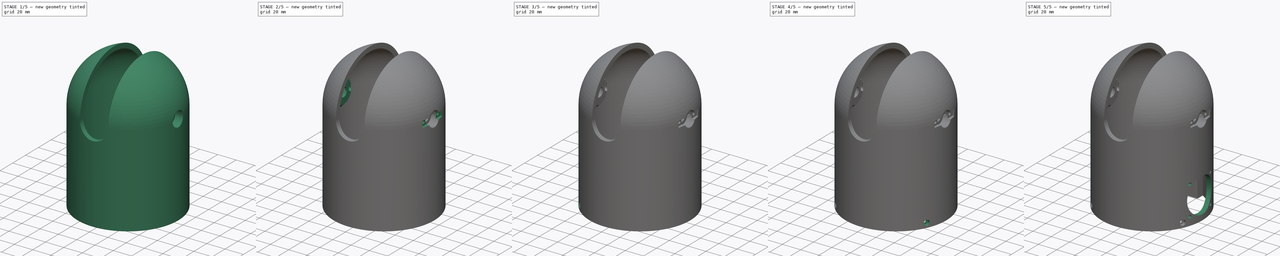
[diagram: build sequence overview — one tinted view per stage of 5, left to right]
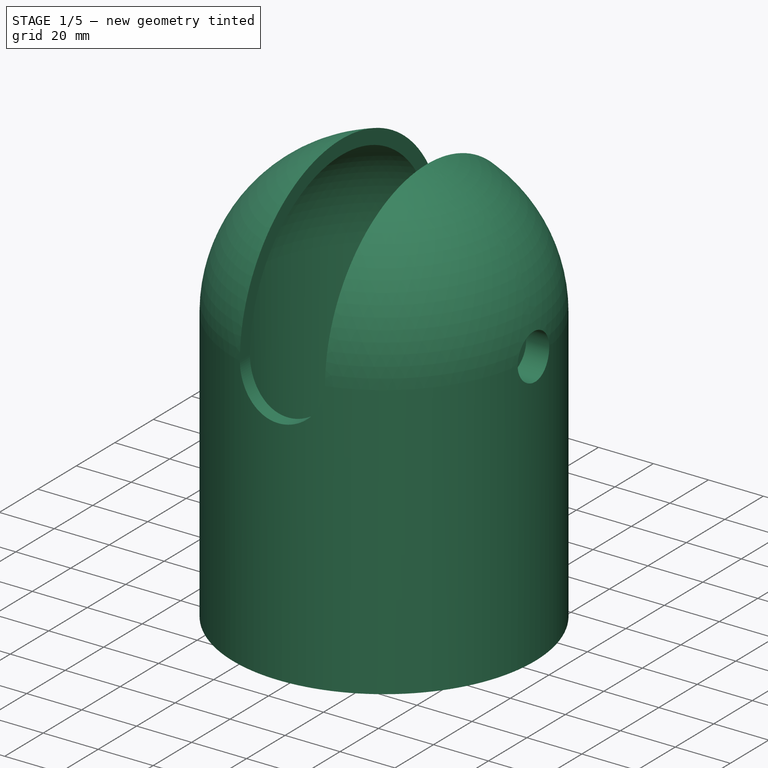
[diagram: stage 1 of 5 — iso view after this stage's code; geometry added in this stage tinted green]
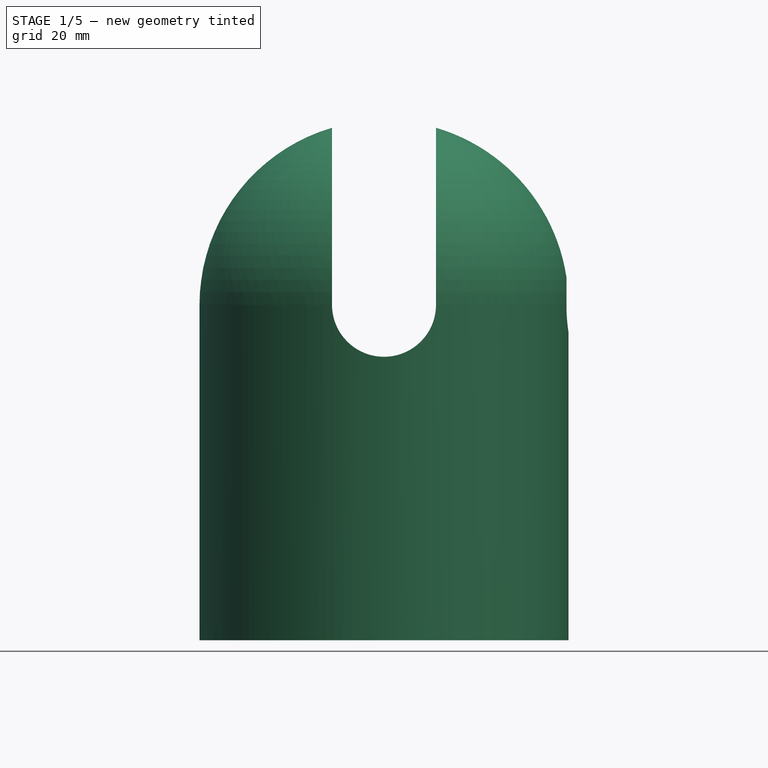
[diagram: stage 1 of 5 — front view after this stage's code; geometry added in this stage tinted green]
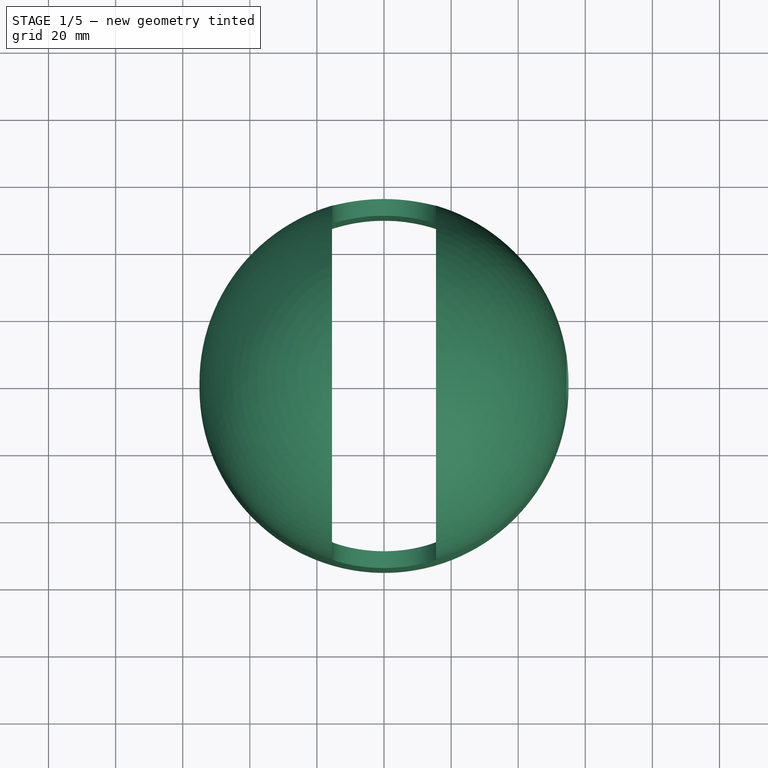
[diagram: stage 1 of 5 — top view after this stage's code; geometry added in this stage tinted green]
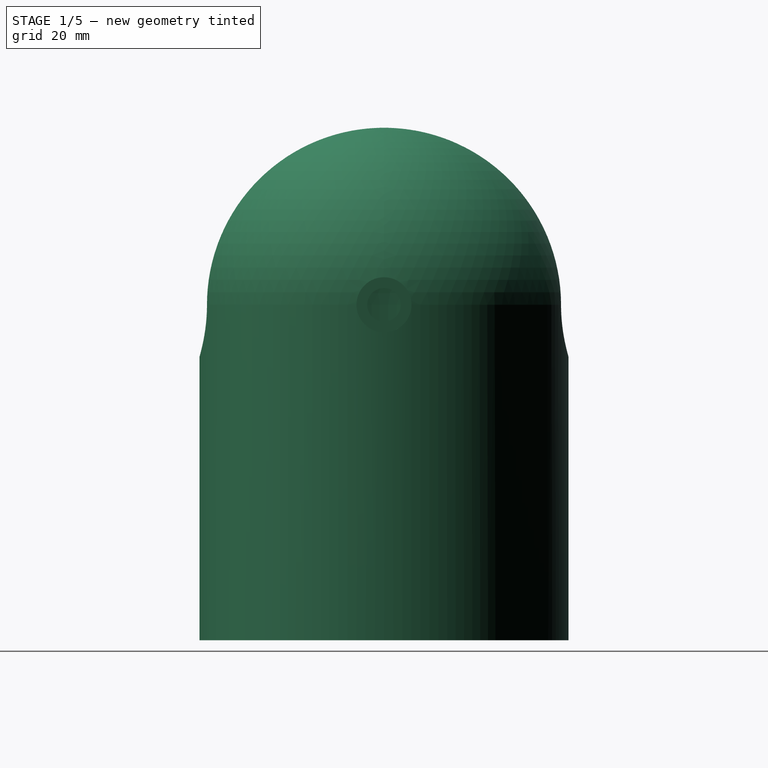
[diagram: stage 1 of 5 — right view after this stage's code; geometry added in this stage tinted green]
FCSTD DOCUMENT  (FreeCAD 0.19R24276 (Git))
Label: Art4Body
License: All rights reserved
LicenseURL: http://en.wikipedia.org/wiki/All_rights_reserved
objects: PartDesign::Line×21, Sketcher::SketchObject×20, PartDesign::Pocket×17, PartDesign::CoordinateSystem×9, PartDesign::Plane×4, PartDesign::PolarPattern×3, PartDesign::Revolution×2, PartDesign::Mirrored×2, Spreadsheet::Sheet×1, PartDesign::Pad×1, PartDesign::MultiTransform×1, PartDesign::Body×1
note: 101 computed .brp shape members not serialized (recipe doc carries the construction recipe); baked Part::Feature solids carry a one-line shape summary decoded from their .brp

FEATURE [Sketcher::SketchObject] Sketch
  FullyConstrained = true
  MapMode = 5
  Placement = pos=(0,0,0) rot=(1,0,0;1.5708rad)
  Support = -> [XZ_Plane]
  sketch-geometry (6):
    g0: ArcOfCircle CenterX=0 CenterY=100 CenterZ=0 NormalX=0 NormalY=0 NormalZ=1 AngleXU=0 Radius=50 StartAngle=0 EndAngle=1.5708
    g1: ArcOfCircle CenterX=0 CenterY=100 CenterZ=0 NormalX=0 NormalY=0 NormalZ=1 AngleXU=0 Radius=55 StartAngle=0 EndAngle=1.5708
    g2: LineSegment StartX=50 StartY=100 StartZ=0 EndX=50 EndY=0 EndZ=0
    g3: LineSegment StartX=50 StartY=0 StartZ=0 EndX=55 EndY=0 EndZ=0
    g4: LineSegment StartX=55 StartY=100 StartZ=0 EndX=55 EndY=0 EndZ=0
    g5: LineSegment StartX=0 StartY=155 StartZ=0 EndX=0 EndY=150 EndZ=0
  constraints (18):
    c: PointOnObject(g0,g-2)
    c: Coincident(g1,g0)
    c: Coincident(g2,g0)
    c: Vertical(g2)
    c: Coincident(g3,g2)
    c: PointOnObject(g3,g-1)
    c: Horizontal(g3)
    c: Coincident(g4,g3)
    c: Vertical(g4)
    c: Equal(g4,g2)
    c: DistanceY(g4,g4) = 100
    c: Tangent(g4,g1) = 1.5708
    c: DistanceX(g3,g3) = 5
    c: Radius(g1) = 55
    c: Coincident(g5,g1)
    c: Coincident(g5,g0)
    c: Vertical(g5)
    c: PointOnObject(g0,g-2)
FEATURE [PartDesign::Revolution] Revolution
  Angle = 360
  Axis = (0,2e-16,1)
  Base = (0,0,0)
  Placement = pos=(0,0,0) rot=(1,0,0;1.5708rad)
  Profile = -> Sketch
  ReferenceAxis = -> Sketch [V_Axis]
  Refine = true
  Reversed = true
FEATURE [Sketcher::SketchObject] Sketch001
  FullyConstrained = true
  MapMode = 5
  Placement = pos=(0,0,0) rot=(1,0,0;1.5708rad)
  Support = -> [XZ_Plane]
  sketch-geometry (4):
    g0: LineSegment StartX=-15.5 StartY=160 StartZ=0 EndX=15.5 EndY=160 EndZ=0
    g1: LineSegment StartX=15.5 StartY=160 StartZ=0 EndX=15.5 EndY=100 EndZ=0
    g2: LineSegment StartX=-15.5 StartY=160 StartZ=0 EndX=-15.5 EndY=100 EndZ=0
    g3: ArcOfCircle CenterX=0 CenterY=100 CenterZ=0 NormalX=0 NormalY=0 NormalZ=1 AngleXU=0 Radius=15.5 StartAngle=3.14159 EndAngle=6.28319
  constraints (11):
    c: Horizontal(g0)
    c: Coincident(g0,g1)
    c: Vertical(g1)
    c: Coincident(g0,g2)
    c: Vertical(g2)
    c: PointOnObject(g3,g-2)
    c: Tangent(g3,g1) = 1.5708
    c: Tangent(g3,g2) = -1.5708
    c: DistanceY(g1,g1) = 60
    c: Radius(g3) = 15.5
    c: DistanceY(g-1,g3) = 100
FEATURE [PartDesign::Pocket] Pocket
  BaseFeature = -> Revolution
  Length = 5
  Length2 = 100
  Midplane = true
  Placement = pos=(0,0,0) rot=(1,0,0;1.5708rad)
  Profile = -> Sketch001
  Refine = true
  Type = 1
FEATURE [Sketcher::SketchObject] Sketch002
  FullyConstrained = true
  MapMode = 5
  Placement = pos=(0,0,0) rot=(1,0,0;1.5708rad)
  Support = -> [XZ_Plane]
  sketch-geometry (4):
    g0: LineSegment StartX=50 StartY=100 StartZ=0 EndX=44 EndY=100 EndZ=0
    g1: LineSegment StartX=44 StartY=100 StartZ=0 EndX=44 EndY=112 EndZ=0
    g2: LineSegment StartX=44 StartY=112 StartZ=0 EndX=50 EndY=118 EndZ=0
    g3: LineSegment StartX=50 StartY=118 StartZ=0 EndX=50 EndY=100 EndZ=0
  constraints (12):
    c: Horizontal(g0)
    c: Coincident(g0,g1)
    c: Vertical(g1)
    c: Coincident(g1,g2)
    c: Coincident(g2,g3)
    c: Coincident(g3,g0)
    c: Vertical(g3)
    c: DistanceX(g0,g0) = 6
    c: DistanceY(g3,g3) = 18
    c: DistanceY(g1,g1) = 12
    c: DistanceX(g-1,g0) = 50
    c: DistanceY(g-1,g0) = 100
FEATURE [PartDesign::Line] DatumLine
  AttacherType = Attacher::AttachEngineLine
  AttachmentOffset = pos=(0,100,0) rot=(0,0,1;0rad)
  Length = 20
  MapMode = 29
  Placement = pos=(0,0,100) rot=(0.57735,0.57735,0.57735;2.0944rad)
  ResizeMode = 0
  Support = -> [X_Axis]
FEATURE [PartDesign::Revolution] Revolution001
  Angle = 360
  Axis = (1,0,0)
  Base = (0,0,100)
  BaseFeature = -> Pocket
  Placement = pos=(0,0,0) rot=(1,0,0;1.5708rad)
  Profile = -> Sketch002
  ReferenceAxis = -> DatumLine
  Refine = true
  Reversed = true
FEATURE [Sketcher::SketchObject] Sketch003
  ExternalGeometry = -> [Revolution001]
  FullyConstrained = true
  MapMode = 5
  Placement = pos=(-15.5,0,0) rot=(0.707107,0,0.707107;3.14159rad)
  Support = -> [Revolution001]
  sketch-geometry (1):
    g0: Circle CenterX=100 CenterY=-2.22e-14 CenterZ=0 NormalX=0 NormalY=0 NormalZ=1 AngleXU=0 Radius=5
  constraints (2):
    c: Radius(g0) = 5
    c: Coincident(g-3,g0)
FEATURE [PartDesign::Pocket] Pocket001
  BaseFeature = -> Revolution001
  Length = 5
  Length2 = 100
  Placement = pos=(0,0,0) rot=(1,0,0;1.5708rad)
  Profile = -> Sketch003
  Refine = true
  Reversed = true
  Type = 1
FEATURE [PartDesign::Plane] DatumPlane
  AttachmentOffset = pos=(0,0,-11) rot=(0,0,1;0rad)
  Length = 205.737
  MapMode = 5
  Placement = pos=(55,0,2.4e-15) rot=(0.707107,0,-0.707107;3.14159rad)
  ResizeMode = 0
  Support = -> [Pocket001]
  Width = 137.953
FEATURE [Sketcher::SketchObject] Sketch004
  ExternalGeometry = -> [Pocket001]
  FullyConstrained = true
  MapMode = 5
  Placement = pos=(55,0,2.4e-15) rot=(0.707107,0,-0.707107;3.14159rad)
  Support = -> [DatumPlane]
  expr: Constraints[1] = Spreadsheet.Bearing655ZZBodyRadius
  sketch-geometry (1):
    g0: Circle CenterX=-100 CenterY=-8.88e-14 CenterZ=0 NormalX=0 NormalY=0 NormalZ=1 AngleXU=0 Radius=8.2
  constraints (2):
    c: Coincident(g0,g-3)
    c: Radius(g0) = 8.2
FEATURE [Spreadsheet::Sheet] Spreadsheet
  cells = A2=M3BoltBodyRadius; B2(M3BoltBodyRadius)=1.7; A3=M3BoltHeadRadius; B3(M3BoltHeadRadius)=2.95; A4=M3NutCircumradius; B4(M3NutCircumradius)=3.35; A5=M3NutThickness; B5(M3NutThickness)=3; A6=Bearing655ZZBodyRadius; B6(Bearing655ZZBodyRadius)=8.199999999999999; A7=MagnetRadius; B7(MagnetRadius)=4.2; A8=MagnetThickness; B8(MagnetThickness)=1.1; A9=M2BoltBodyRadius; B9(M2BoltBodyRadius)=1.2; A10=M2BoltHeadRadius; B10(M2BoltHeadRadius)=2.1
FEATURE [PartDesign::Pocket] Pocket002
  BaseFeature = -> Pocket001
  Length = 9
  Length2 = 100
  Placement = pos=(0,0,0) rot=(1,0,0;1.5708rad)
  Profile = -> Sketch004
  Refine = true
  Reversed = true
  Type = 0
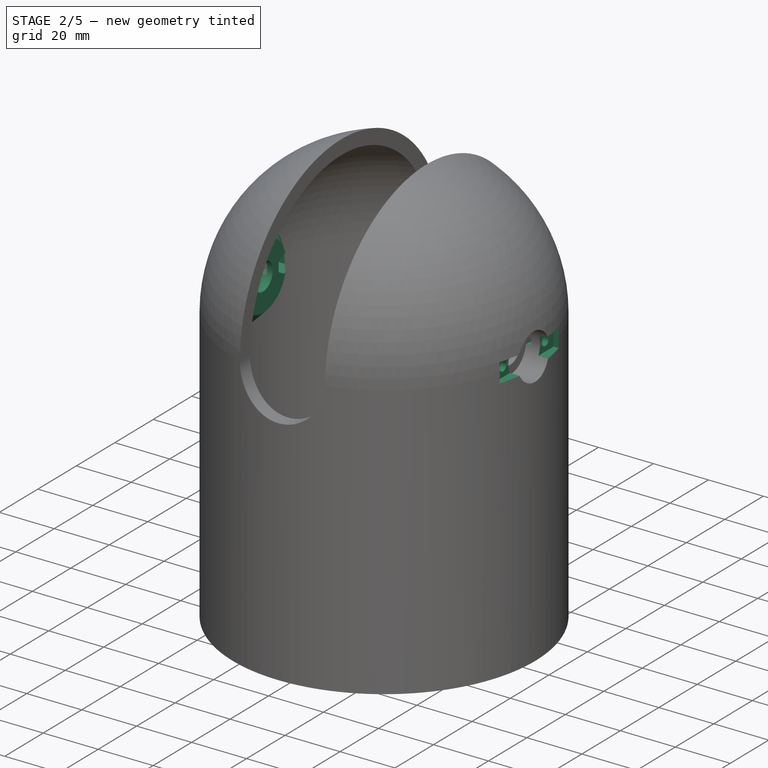
[diagram: stage 2 of 5 — iso view after this stage's code; geometry added in this stage tinted green]
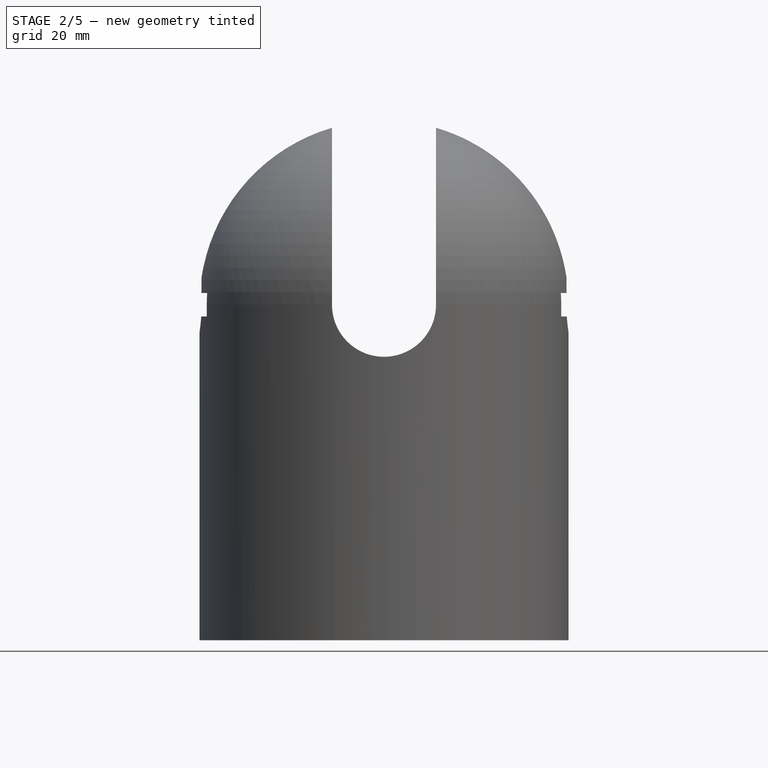
[diagram: stage 2 of 5 — front view after this stage's code; geometry added in this stage tinted green]
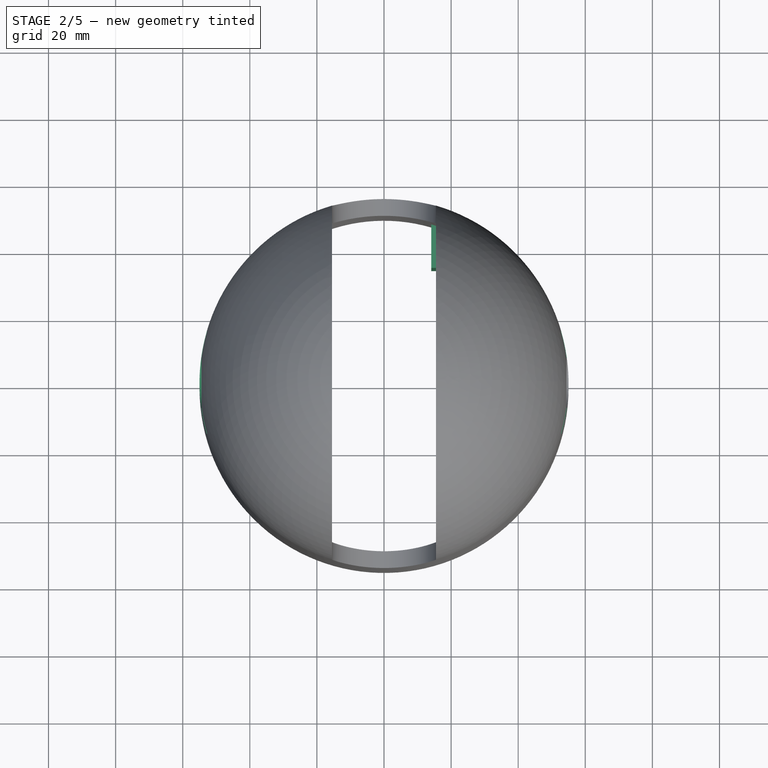
[diagram: stage 2 of 5 — top view after this stage's code; geometry added in this stage tinted green]
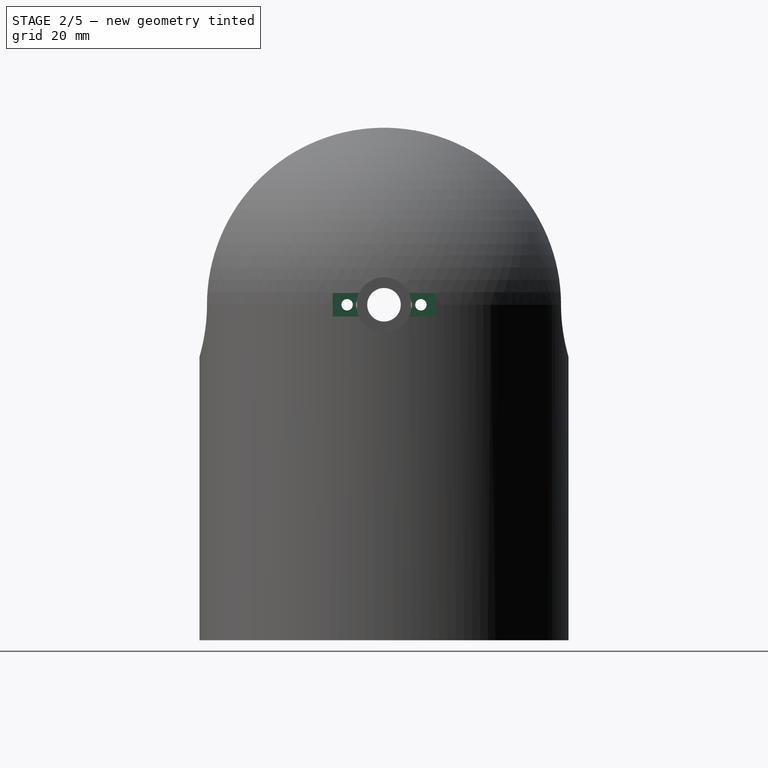
[diagram: stage 2 of 5 — right view after this stage's code; geometry added in this stage tinted green]
FEATURE [Sketcher::SketchObject] Sketch005
  ExternalGeometry = -> [Pocket002]
  FullyConstrained = false
  MapMode = 5
  Placement = pos=(55,0,2.4e-15) rot=(0.707107,0,-0.707107;3.14159rad)
  Support = -> [DatumPlane]
  sketch-geometry (6):
    g0: LineSegment StartX=-103.5 StartY=15.3 StartZ=0 EndX=-96.5 EndY=15.3 EndZ=0
    g1: LineSegment StartX=-96.5 StartY=15.3 StartZ=0 EndX=-96.5 EndY=-15.3 EndZ=0
    g2: LineSegment StartX=-96.5 StartY=-15.3 StartZ=0 EndX=-103.5 EndY=-15.3 EndZ=0
    g3: LineSegment StartX=-103.5 StartY=-15.3 StartZ=0 EndX=-103.5 EndY=15.3 EndZ=0
    g4: LineSegment StartX=-100 StartY=-1.332e-13 StartZ=0 EndX=-103.5 EndY=-1.332e-13 EndZ=0
    g5: LineSegment StartX=-100 StartY=-1.332e-13 StartZ=0 EndX=-96.5 EndY=-1.332e-13 EndZ=0
  constraints (16):
    c: Coincident(g0,g1)
    c: Coincident(g1,g2)
    c: Coincident(g2,g3)
    c: Coincident(g3,g0)
    c: Horizontal(g0)
    c: Horizontal(g2)
    c: Vertical(g3)
    c: Symmetric(g0,g1,g-1)
    c: DistanceX(g2,g2) = 7
    c: DistanceY(g1,g1) = 30.6
    c: PointOnObject(g4,g3)
    c: Coincident(g5,g4)
    c: PointOnObject(g5,g1)
    c: Equal(g5,g4)
    c: Horizontal(g4)
    c: Horizontal(g5)
FEATURE [PartDesign::Pocket] Pocket003
  BaseFeature = -> Pocket002
  Length = 4
  Length2 = 100
  Placement = pos=(0,0,0) rot=(1,0,0;1.5708rad)
  Profile = -> Sketch005
  Refine = true
  Reversed = true
  Type = 0
FEATURE [Sketcher::SketchObject] Sketch006
  ExternalGeometry = -> [Pocket003]
  FullyConstrained = true
  MapMode = 5
  Placement = pos=(51,0,0) rot=(0.707107,0,0.707107;3.14159rad)
  Support = -> [Pocket003]
  expr: Constraints[4] = Spreadsheet.M3BoltBodyRadius
  sketch-geometry (3):
    g0: Circle CenterX=100 CenterY=11 CenterZ=0 NormalX=0 NormalY=0 NormalZ=1 AngleXU=0 Radius=1.7
    g1: Circle CenterX=100 CenterY=-11 CenterZ=0 NormalX=0 NormalY=0 NormalZ=1 AngleXU=0 Radius=1.7
    g2: LineSegment StartX=100 StartY=11 StartZ=0 EndX=100 EndY=-11 EndZ=0
  constraints (7):
    c: Coincident(g2,g0)
    c: Coincident(g2,g1)
    c: PointOnObject(g-3,g2)
    c: Symmetric(g0,g1,g-1)
    c: Radius(g1) = 1.7
    c: DistanceY(g2,g2) = 22
    c: Equal(g0,g1)
FEATURE [PartDesign::Pocket] Pocket004
  BaseFeature = -> Pocket003
  Length = 10
  Length2 = 100
  Placement = pos=(0,0,0) rot=(1,0,0;1.5708rad)
  Profile = -> Sketch006
  Refine = true
  Type = 0
FEATURE [Sketcher::SketchObject] Sketch007
  ExternalGeometry = -> [Pocket004]
  FullyConstrained = true
  MapMode = 5
  Placement = pos=(44,0,0) rot=(0.707107,0,-0.707107;3.14159rad)
  Support = -> [Pocket004]
  expr: Constraints[36] = Spreadsheet.M3NutCircumradius
  sketch-geometry (14):
    g0: LineSegment StartX=-103.35 StartY=-11 StartZ=0 EndX=-101.675 EndY=-13.9012 EndZ=0
    g1: LineSegment StartX=-101.675 StartY=-13.9012 StartZ=0 EndX=-98.325 EndY=-13.9012 EndZ=0
    g2: LineSegment StartX=-98.325 StartY=-13.9012 StartZ=0 EndX=-96.65 EndY=-11 EndZ=0
    g3: LineSegment StartX=-96.65 StartY=-11 StartZ=0 EndX=-98.325 EndY=-8.09881 EndZ=0
    g4: LineSegment StartX=-98.325 StartY=-8.09881 StartZ=0 EndX=-101.675 EndY=-8.09881 EndZ=0
    g5: LineSegment StartX=-101.675 StartY=-8.09881 StartZ=0 EndX=-103.35 EndY=-11 EndZ=0
    g6: Circle CenterX=-100 CenterY=-11 CenterZ=0 NormalX=0 NormalY=0 NormalZ=1 AngleXU=0 Radius=3.35
    g7: LineSegment StartX=-101.675 StartY=8.09881 StartZ=0 EndX=-98.325 EndY=8.09881 EndZ=0
    g8: LineSegment StartX=-98.325 StartY=8.09881 StartZ=0 EndX=-96.65 EndY=11 EndZ=0
    g9: LineSegment StartX=-96.65 StartY=11 StartZ=0 EndX=-98.325 EndY=13.9012 EndZ=0
    g10: LineSegment StartX=-98.325 StartY=13.9012 StartZ=0 EndX=-101.675 EndY=13.9012 EndZ=0
    g11: LineSegment StartX=-101.675 StartY=13.9012 StartZ=0 EndX=-103.35 EndY=11 EndZ=0
    g12: LineSegment StartX=-103.35 StartY=11 StartZ=0 EndX=-101.675 EndY=8.09881 EndZ=0
    g13: Circle CenterX=-100 CenterY=11 CenterZ=0 NormalX=0 NormalY=0 NormalZ=1 AngleXU=0 Radius=3.35
  constraints (32):
    c: Coincident(g0,g1)
    c: Coincident(g1,g2)
    c: Coincident(g2,g3)
    c: Coincident(g3,g4)
    c: Coincident(g4,g5)
    c: Coincident(g5,g0)
    c: Equal(g0, g1-g5) x5
    c: PointOnObject(g0,g6)
    c: PointOnObject(g1,g6)
    c: PointOnObject(g2,g6)
    c: PointOnObject(g3,g6)
    c: PointOnObject(g4,g6)
    c: PointOnObject(g5,g6)
    c: Coincident(g7,g8)
    c: Coincident(g8,g9)
    c: Coincident(g9,g10)
    c: Coincident(g10,g11)
    c: Coincident(g11,g12)
    c: Coincident(g12,g7)
    c: Equal(g7, g8-g12) x5
    c: PointOnObject(g7,g13)
    c: PointOnObject(g8,g13)
    c: PointOnObject(g9,g13)
    c: PointOnObject(g10,g13)
    c: PointOnObject(g11,g13)
    c: PointOnObject(g12,g13)
    c: Equal(g13,g6)
    c: Horizontal(g4)
    c: Radius(g13) = 3.35
    c: Horizontal(g7)
    c: Coincident(g6,g-4)
    c: Coincident(g13,g-3)
FEATURE [PartDesign::Pocket] Pocket005
  BaseFeature = -> Pocket004
  Length = 4
  Length2 = 100
  Placement = pos=(0,0,0) rot=(1,0,0;1.5708rad)
  Profile = -> Sketch007
  Refine = true
  Type = 0
FEATURE [PartDesign::Mirrored] Mirrored
  BaseFeature = -> Pocket005
  MirrorPlane = -> Sketch002 [V_Axis]
  Originals = -> [Revolution001,Pocket001,Pocket002,Pocket003,Pocket004,Pocket005]
  Placement = pos=(0,0,0) rot=(1,0,0;1.5708rad)
  Refine = true
FEATURE [Sketcher::SketchObject] Sketch008
  ExternalGeometry = -> [Mirrored]
  FullyConstrained = true
  MapMode = 5
  Placement = pos=(0,0,0) rot=(1,0,0;3.14159rad)
  Support = -> [Mirrored]
  sketch-geometry (8):
    g0: ArcOfCircle CenterX=0 CenterY=0 CenterZ=0 NormalX=0 NormalY=0 NormalZ=1 AngleXU=0 Radius=50 StartAngle=3.82091 EndAngle=4.12042
    g1: ArcOfCircle CenterX=0 CenterY=0 CenterZ=0 NormalX=0 NormalY=0 NormalZ=1 AngleXU=0 Radius=50 StartAngle=4.99827 EndAngle=5.2383
    g2: LineSegment StartX=-38.9 StartY=-31.4132 StartZ=0 EndX=-38.9 EndY=-27 EndZ=0
    g3: LineSegment StartX=-38.9 StartY=-27 StartZ=0 EndX=-27.9 EndY=-27 EndZ=0
    g4: LineSegment StartX=-27.9 StartY=-27 StartZ=0 EndX=-27.9 EndY=-41.492 EndZ=0
    g5: LineSegment StartX=14.1 StartY=-47.9707 StartZ=0 EndX=14.1 EndY=-35 EndZ=0
    g6: LineSegment StartX=14.1 StartY=-35 StartZ=0 EndX=25.1 EndY=-35 EndZ=0
    g7: LineSegment StartX=25.1 StartY=-35 StartZ=0 EndX=25.1 EndY=-43.2434 EndZ=0
  constraints (24):
    c: Coincident(g0,g-1)
    c: Coincident(g1,g0)
    c: Vertical(g2)
    c: Coincident(g2,g3)
    c: Horizontal(g3)
    c: Coincident(g3,g4)
    c: Coincident(g4,g0)
    c: Vertical(g5)
    c: Coincident(g5,g6)
    c: Horizontal(g6)
    c: Coincident(g6,g7)
    c: Coincident(g7,g1)
    c: Vertical(g7)
    c: Coincident(g5,g1)
    c: Coincident(g2,g0)
    c: Vertical(g4)
    c: DistanceY(g3,g0) = 27
    c: DistanceX(g3,g0) = 27.9
    c: DistanceX(g3,g3) = 11
    c: DistanceX(g6,g6) = 11
    c: DistanceY(g5,g0) = 35
    c: DistanceX(g0,g5) = 14.1
    c: Equal(g0,g-3)
    c: Equal(g1,g-3)
FEATURE [PartDesign::Pad] Pad
  BaseFeature = -> Mirrored
  Direction = (1,1,1)
  Length = 55
  Length2 = 100
  Placement = pos=(0,0,0) rot=(1,0,0;1.5708rad)
  Profile = -> Sketch008
  Refine = true
  Reversed = true
  Type = 0
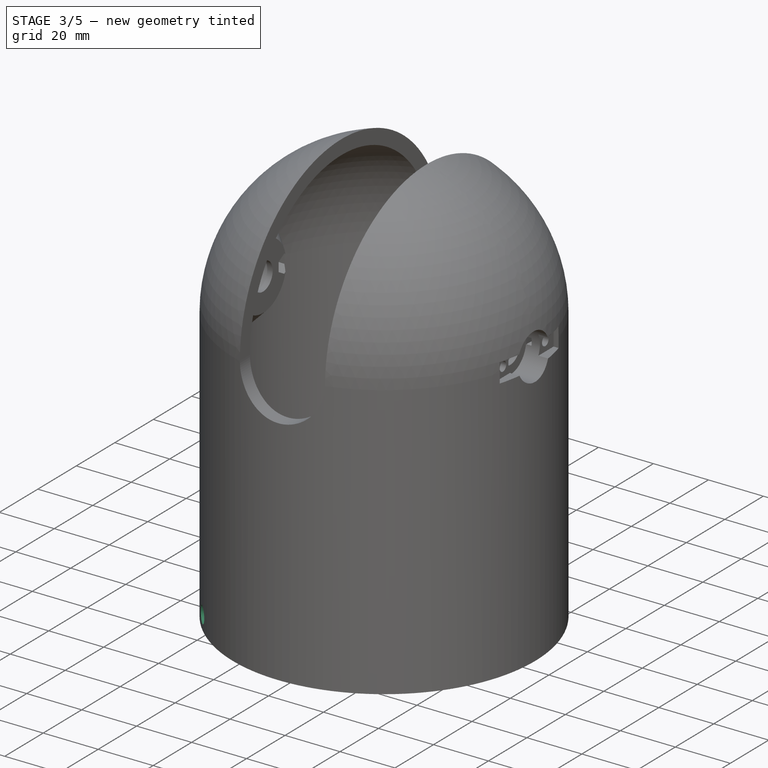
[diagram: stage 3 of 5 — iso view after this stage's code; geometry added in this stage tinted green]
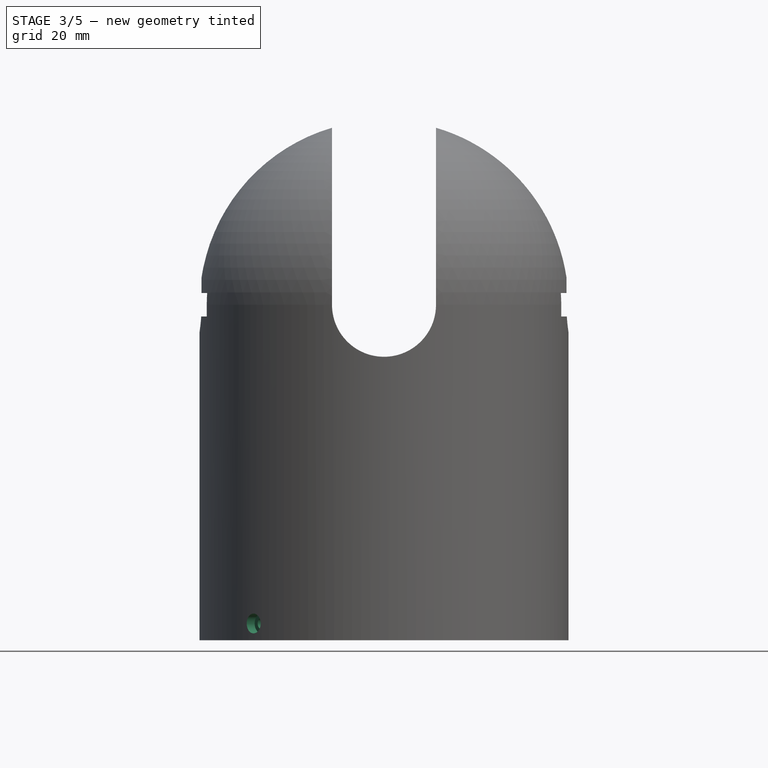
[diagram: stage 3 of 5 — front view after this stage's code; geometry added in this stage tinted green]
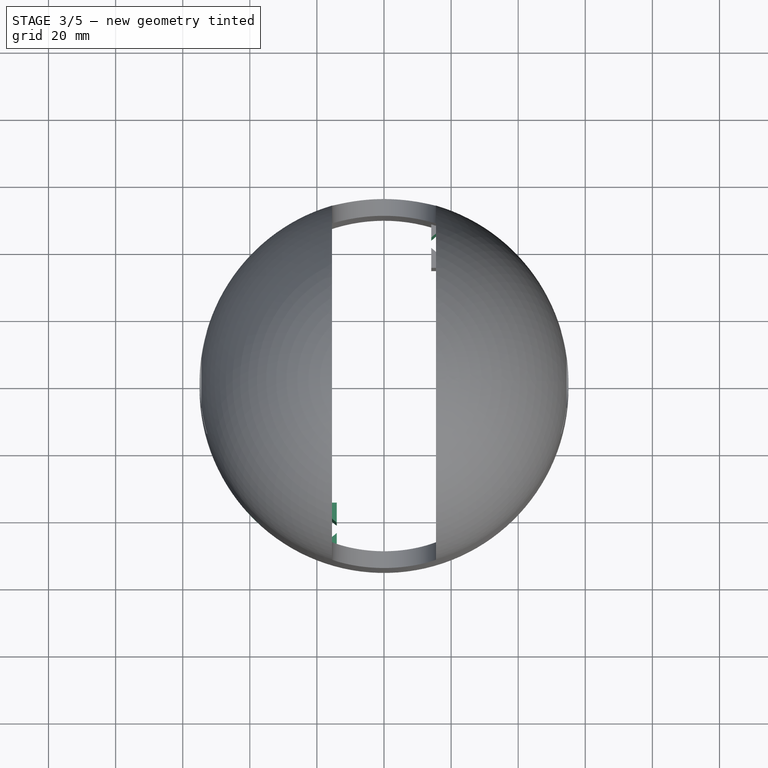
[diagram: stage 3 of 5 — top view after this stage's code; geometry added in this stage tinted green]
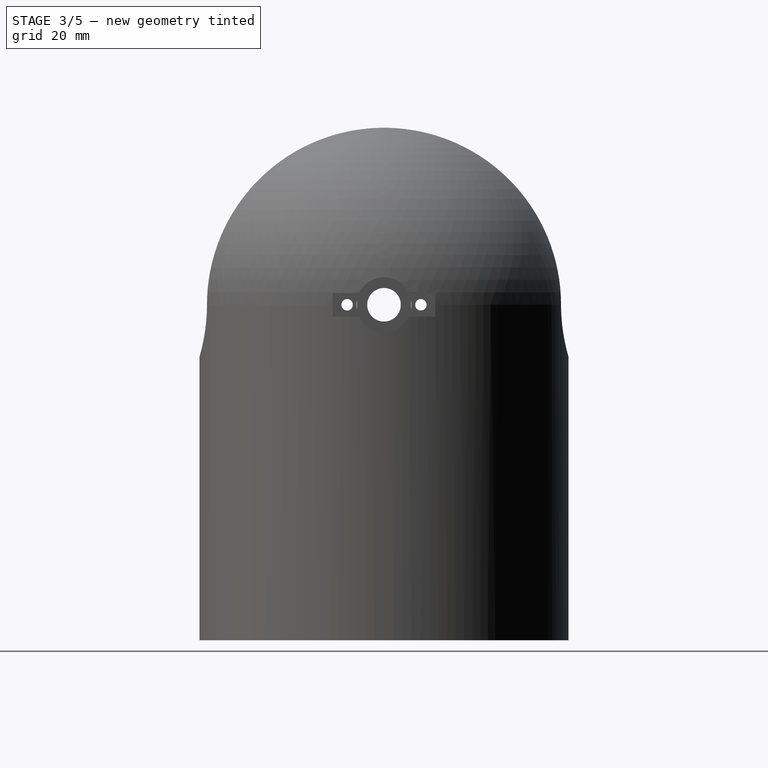
[diagram: stage 3 of 5 — right view after this stage's code; geometry added in this stage tinted green]
FEATURE [Sketcher::SketchObject] Sketch009
  ExternalGeometry = -> [Pad]
  FullyConstrained = true
  MapMode = 5
  Placement = pos=(0,0,0) rot=(1,0,0;3.14159rad)
  Support = -> [Pad]
  sketch-geometry (11):
    g0: LineSegment StartX=-32 StartY=-29.5 StartZ=0 EndX=-32 EndY=-39.5 EndZ=0
    g1: LineSegment StartX=-32 StartY=-39.5 StartZ=0 EndX=-26.0412 EndY=-34.5 EndZ=0
    g2: LineSegment StartX=-26.0412 StartY=-34.5 StartZ=0 EndX=-32 EndY=-29.5 EndZ=0
    g3: LineSegment StartX=18.2 StartY=-37.5 StartZ=0 EndX=18.2 EndY=-47.5 EndZ=0
    g4: LineSegment StartX=18.2 StartY=-47.5 StartZ=0 EndX=12.2412 EndY=-42.5 EndZ=0
    g5: LineSegment StartX=12.2412 StartY=-42.5 StartZ=0 EndX=18.2 EndY=-37.5 EndZ=0
    g6: LineSegment StartX=-27.9 StartY=-43 StartZ=0 EndX=-24.1 EndY=-45.35 EndZ=0
    g7: LineSegment StartX=-21.0565 StartY=-41.492 StartZ=0 EndX=-27.9 EndY=-41.492 EndZ=0
    g8: LineSegment StartX=-27.9 StartY=-41.492 StartZ=0 EndX=-27.9 EndY=-43 EndZ=0
    g9: LineSegment StartX=-24.1 StartY=-45.35 StartZ=0 EndX=-21.0565 EndY=-45.35 EndZ=0
    g10: LineSegment StartX=-21.0565 StartY=-45.35 StartZ=0 EndX=-21.0565 EndY=-41.492 EndZ=0
  constraints (32):
    c: Vertical(g0)
    c: Coincident(g0,g1)
    c: Coincident(g1,g2)
    c: Coincident(g2,g0)
    c: Vertical(g3)
    c: Coincident(g3,g4)
    c: Coincident(g4,g5)
    c: Coincident(g5,g3)
    c: Angle(g0,g2) = 0.872665
    c: Angle(g1,g0) = 0.872665
    c: DistanceY(g0,g0) = 10
    c: Equal(g0,g3)
    c: Angle(g3,g4) = 0.872665
    c: Angle(g5,g3) = 0.872665
    c: Horizontal(g7)
    c: DistanceX(g6,g6) = 3.8
    c: Coincident(g8,g7)
    c: Coincident(g8,g6)
    c: Vertical(g8)
    c: DistanceY(g1,g-3) = 7.5
    c: DistanceX(g0,g-3) = 4.1
    c: DistanceY(g6,g1) = 8.5
    c: DistanceY(g6,g6) = 2.35
    c: Coincident(g6,g9)
    c: Horizontal(g9)
    c: Coincident(g9,g10)
    c: Vertical(g10)
    c: Coincident(g7,g10)
    c: Coincident(g7,g-4)
    c: PointOnObject(g9,g-5)
    c: DistanceY(g4,g-6) = 7.5
    c: DistanceX(g-6,g3) = 4.1
FEATURE [PartDesign::Pocket] Pocket006
  BaseFeature = -> Pad
  Length = 55
  Length2 = 100
  Placement = pos=(0,0,0) rot=(1,0,0;1.5708rad)
  Profile = -> Sketch009
  Refine = true
  Type = 0
FEATURE [PartDesign::PolarPattern] PolarPattern
  Angle = 360
  Axis = -> Sketch008 [N_Axis]
  BaseFeature = -> Pocket006
  Occurrences = 2
  Originals = -> [Pad,Pocket006]
  Placement = pos=(0,0,0) rot=(1,0,0;1.5708rad)
  Refine = true
FEATURE [PartDesign::Plane] DatumPlane001
  AttachmentOffset = pos=(-40,0,40) rot=(0,-1,0;0.785398rad)
  Length = 188.813
  MapMode = 5
  Placement = pos=(-40,-40,-8.9e-15) rot=(0.862856,-0.357407,-0.357407;1.71777rad)
  ResizeMode = 0
  Support = -> [XZ_Plane]
  Width = 211.029
FEATURE [Sketcher::SketchObject] Sketch010
  FullyConstrained = true
  MapMode = 5
  Placement = pos=(-40,-40,-8.9e-15) rot=(0.862856,-0.357407,-0.357407;1.71777rad)
  Support = -> [DatumPlane001]
  expr: Constraints[2] = Spreadsheet.M3BoltBodyRadius
  sketch-geometry (1):
    g0: Circle CenterX=0 CenterY=5 CenterZ=0 NormalX=0 NormalY=0 NormalZ=1 AngleXU=0 Radius=1.7
  constraints (3):
    c: PointOnObject(g0,g-2)
    c: DistanceY(g-1,g0) = 5
    c: Radius(g0) = 1.7
FEATURE [PartDesign::Pocket] Pocket007
  BaseFeature = -> PolarPattern
  Length = 10
  Length2 = 100
  Placement = pos=(0,0,0) rot=(1,0,0;1.5708rad)
  Profile = -> Sketch010
  Refine = true
  Type = 0
FEATURE [Sketcher::SketchObject] Sketch011
  FullyConstrained = true
  MapMode = 5
  Placement = pos=(-40,-40,-8.9e-15) rot=(0.862856,-0.357407,-0.357407;1.71777rad)
  Support = -> [DatumPlane001]
  expr: Constraints[2] = Spreadsheet.M3BoltHeadRadius
  sketch-geometry (1):
    g0: Circle CenterX=0 CenterY=5 CenterZ=0 NormalX=0 NormalY=0 NormalZ=1 AngleXU=0 Radius=2.95
  constraints (3):
    c: PointOnObject(g0,g-2)
    c: DistanceY(g-1,g0) = 5
    c: Radius(g0) = 2.95
FEATURE [PartDesign::Pocket] Pocket008
  BaseFeature = -> Pocket007
  Length = 5
  Length2 = 100
  Placement = pos=(0,0,0) rot=(1,0,0;1.5708rad)
  Profile = -> Sketch011
  Refine = true
  Type = 0
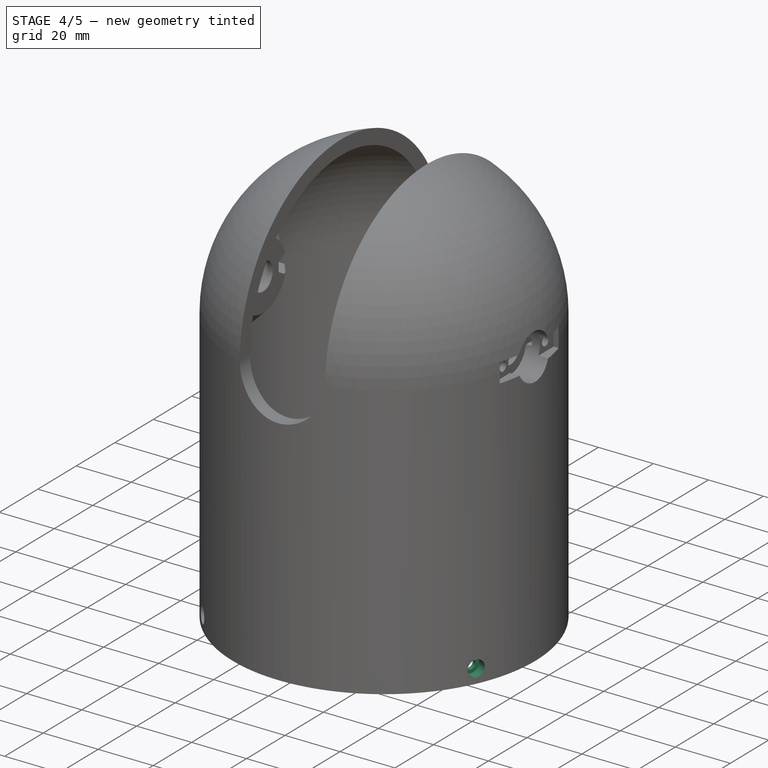
[diagram: stage 4 of 5 — iso view after this stage's code; geometry added in this stage tinted green]
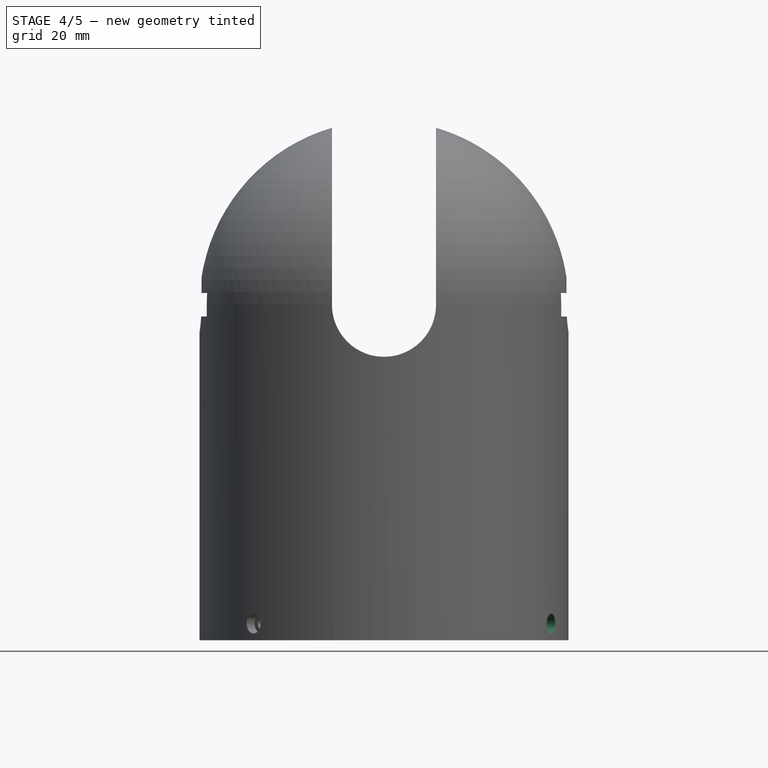
[diagram: stage 4 of 5 — front view after this stage's code; geometry added in this stage tinted green]
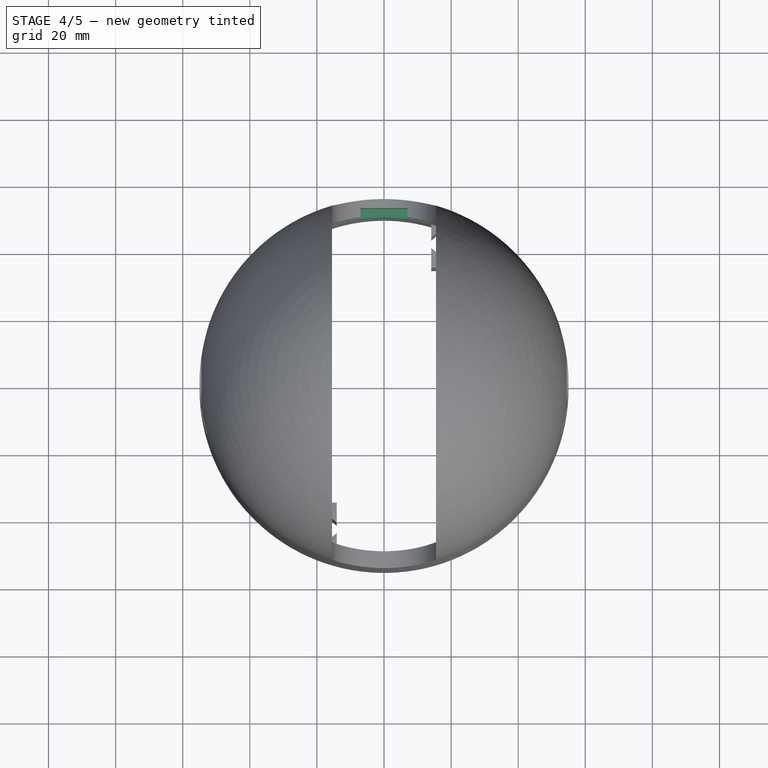
[diagram: stage 4 of 5 — top view after this stage's code; geometry added in this stage tinted green]
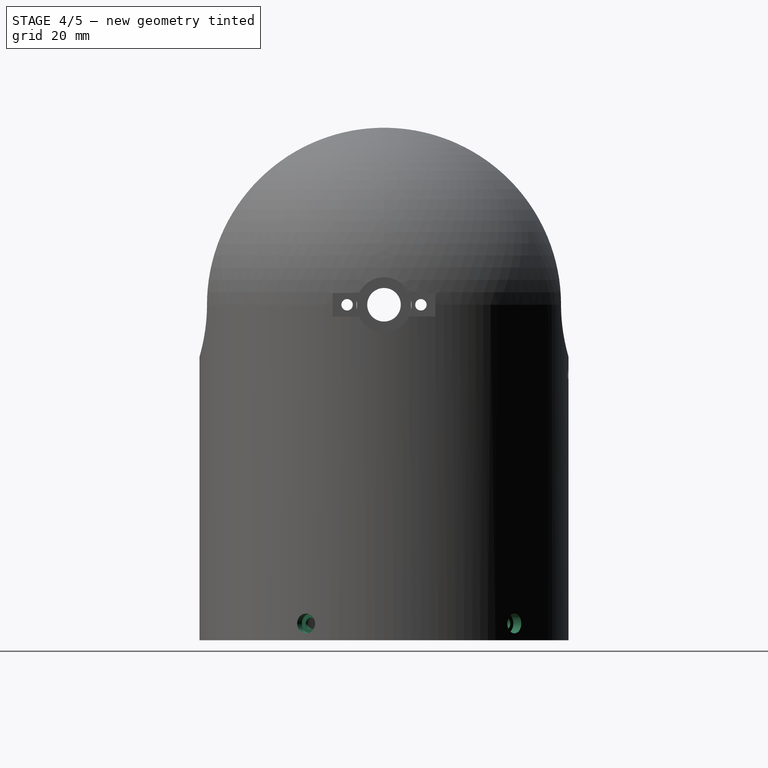
[diagram: stage 4 of 5 — right view after this stage's code; geometry added in this stage tinted green]
FEATURE [PartDesign::PolarPattern] PolarPattern001
  Angle = 70
  Axis = -> Z_Axis
  Occurrences = 2
  Placement = pos=(0,0,0) rot=(1,0,0;1.5708rad)
  Refine = true
  Reversed = true
FEATURE [PartDesign::PolarPattern] PolarPattern002
  Angle = 360
  Axis = -> Z_Axis
  Occurrences = 2
  Placement = pos=(0,0,0) rot=(1,0,0;1.5708rad)
  Refine = true
FEATURE [PartDesign::MultiTransform] MultiTransform
  BaseFeature = -> Pocket008
  Originals = -> [Pocket007,Pocket008]
  Placement = pos=(0,0,0) rot=(1,0,0;1.5708rad)
  Refine = true
  Transformations = -> [PolarPattern001,PolarPattern002]
FEATURE [Sketcher::SketchObject] Sketch012
  FullyConstrained = true
  MapMode = 5
  Placement = pos=(0,0,0) rot=(1,0,0;1.5708rad)
  Support = -> [XZ_Plane]
  sketch-geometry (4):
    g0: LineSegment StartX=-7 StartY=102 StartZ=0 EndX=7 EndY=102 EndZ=0
    g1: LineSegment StartX=7 StartY=102 StartZ=0 EndX=7 EndY=72 EndZ=0
    g2: LineSegment StartX=7 StartY=72 StartZ=0 EndX=-7 EndY=72 EndZ=0
    g3: LineSegment StartX=-7 StartY=72 StartZ=0 EndX=-7 EndY=102 EndZ=0
  constraints (11):
    c: Coincident(g0,g1)
    c: Coincident(g1,g2)
    c: Coincident(g2,g3)
    c: Coincident(g3,g0)
    c: Horizontal(g2)
    c: Vertical(g1)
    c: Vertical(g3)
    c: Symmetric(g0,g0,g-2)
    c: DistanceX(g0,g0) = 14
    c: DistanceY(g-1,g1) = 72
    c: DistanceY(g1,g1) = 30
FEATURE [PartDesign::Pocket] Pocket009
  BaseFeature = -> MultiTransform
  Length = 52.25
  Length2 = 100
  Placement = pos=(0,0,0) rot=(1,0,0;1.5708rad)
  Profile = -> Sketch012
  Refine = true
  Type = 0
FEATURE [Sketcher::SketchObject] Sketch013
  ExternalGeometry = -> [Pocket009]
  FullyConstrained = true
  MapMode = 5
  Placement = pos=(0,52.25,-1e-16) rot=(1,0,0;1.5708rad)
  Support = -> [Pocket009]
  expr: Constraints[3] = Spreadsheet.M2BoltBodyRadius
  sketch-geometry (2):
    g0: Circle CenterX=-3.25 CenterY=79.9 CenterZ=0 NormalX=0 NormalY=0 NormalZ=1 AngleXU=0 Radius=1.2
    g1: Circle CenterX=3.25 CenterY=79.9 CenterZ=0 NormalX=0 NormalY=0 NormalZ=1 AngleXU=0 Radius=1.2
  constraints (5):
    c: Symmetric(g1,g0,g-2)
    c: DistanceX(g0,g1) = 6.5
    c: Equal(g0,g1)
    c: Radius(g0) = 1.2
    c: DistanceY(g-3,g0) = 7.9
FEATURE [PartDesign::Pocket] Pocket010
  BaseFeature = -> Pocket009
  Length = 5
  Length2 = 100
  Placement = pos=(0,0,0) rot=(1,0,0;1.5708rad)
  Profile = -> Sketch013
  Refine = true
  Type = 1
FEATURE [PartDesign::Plane] DatumPlane002
  AttachmentOffset = pos=(0,0,-3) rot=(0,0,1;0rad)
  Length = 137.968
  MapMode = 5
  Placement = pos=(0,55.25,-8e-16) rot=(1,0,0;1.5708rad)
  ResizeMode = 0
  Support = -> [Pocket010]
  Width = 205.738
FEATURE [Sketcher::SketchObject] Sketch014
  ExternalGeometry = -> [Pocket010]
  FullyConstrained = true
  MapMode = 5
  Placement = pos=(0,55.25,-8e-16) rot=(1,0,0;1.5708rad)
  Support = -> [DatumPlane002]
  expr: Constraints[1] = Spreadsheet.M2BoltHeadRadius
  sketch-geometry (2):
    g0: Circle CenterX=3.25 CenterY=79.9 CenterZ=0 NormalX=0 NormalY=0 NormalZ=1 AngleXU=0 Radius=2.1
    g1: Circle CenterX=-3.25 CenterY=79.9 CenterZ=0 NormalX=0 NormalY=0 NormalZ=1 AngleXU=0 Radius=2.1
  constraints (4):
    c: Equal(g1,g0)
    c: Radius(g0) = 2.1
    c: Coincident(g0,g-4)
    c: Coincident(g1,g-3)
FEATURE [PartDesign::Pocket] Pocket011
  BaseFeature = -> Pocket010
  Length = 1.5
  Length2 = 100
  Placement = pos=(0,0,0) rot=(1,0,0;1.5708rad)
  Profile = -> Sketch014
  Refine = true
  Reversed = true
  Type = 0
FEATURE [Sketcher::SketchObject] Sketch015
  FullyConstrained = true
  MapMode = 5
  Placement = pos=(0,0,0) rot=(1,0,0;1.5708rad)
  Support = -> [XZ_Plane]
  sketch-geometry (4):
    g0: LineSegment StartX=-13.5 StartY=69.375 StartZ=0 EndX=13.5 EndY=69.375 EndZ=0
    g1: LineSegment StartX=13.5 StartY=69.375 StartZ=0 EndX=13.5 EndY=57.375 EndZ=0
    g2: LineSegment StartX=13.5 StartY=57.375 StartZ=0 EndX=-13.5 EndY=57.375 EndZ=0
    g3: LineSegment StartX=-13.5 StartY=57.375 StartZ=0 EndX=-13.5 EndY=69.375 EndZ=0
  constraints (11):
    c: Coincident(g0,g1)
    c: Coincident(g1,g2)
    c: Coincident(g2,g3)
    c: Coincident(g3,g0)
    c: Horizontal(g2)
    c: Vertical(g1)
    c: Vertical(g3)
    c: Symmetric(g0,g0,g-2)
    c: DistanceY(g3,g3) = 12
    c: DistanceX(g0,g0) = 27
    c: DistanceY(g-1,g2) = 57.375
FEATURE [PartDesign::Pocket] Pocket012
  BaseFeature = -> Pocket011
  Length = 51
  Length2 = 100
  Placement = pos=(0,0,0) rot=(1,0,0;1.5708rad)
  Profile = -> Sketch015
  Refine = true
  Type = 0
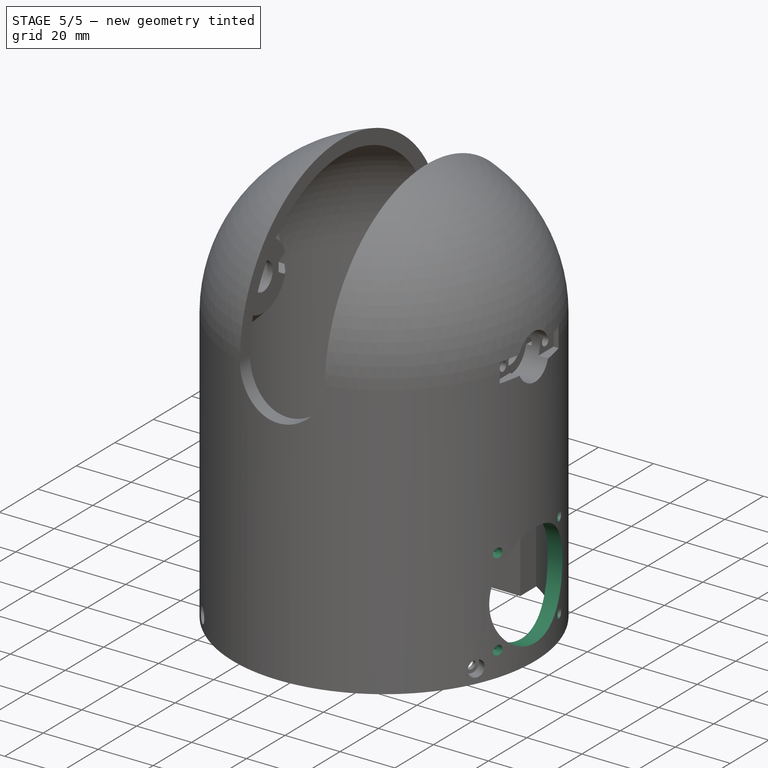
[diagram: stage 5 of 5 — iso view after this stage's code; geometry added in this stage tinted green]
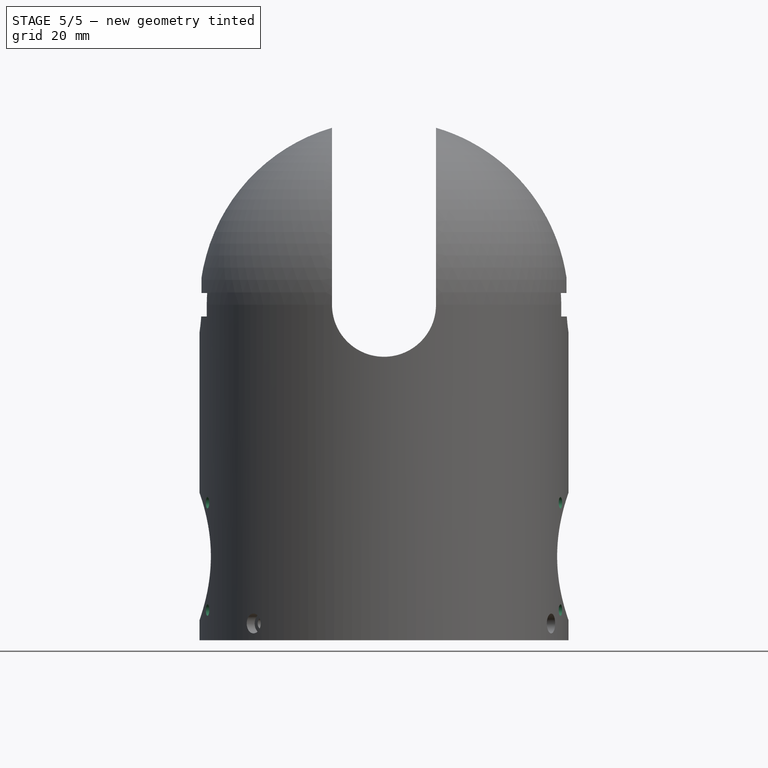
[diagram: stage 5 of 5 — front view after this stage's code; geometry added in this stage tinted green]
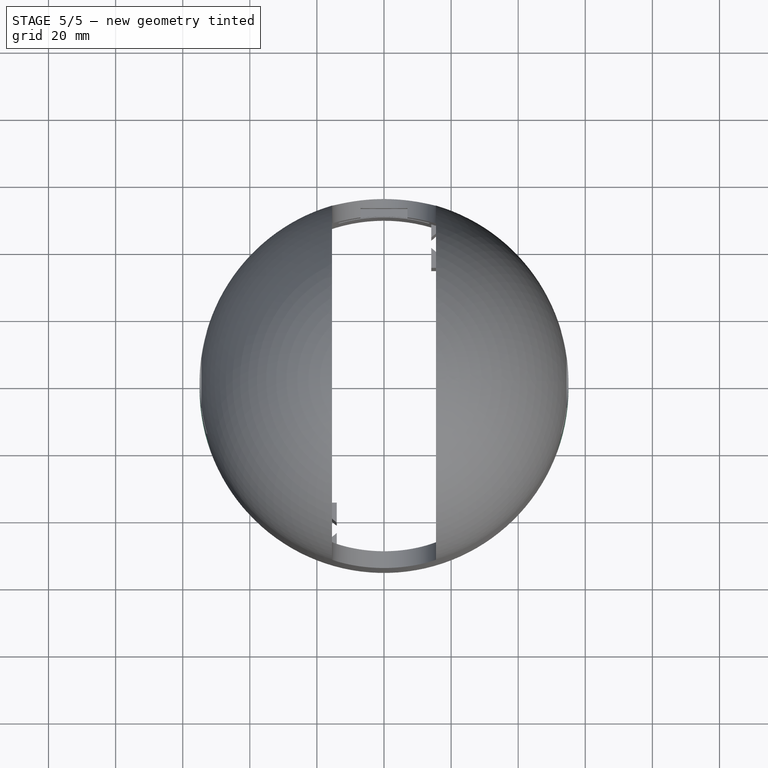
[diagram: stage 5 of 5 — top view after this stage's code; geometry added in this stage tinted green]
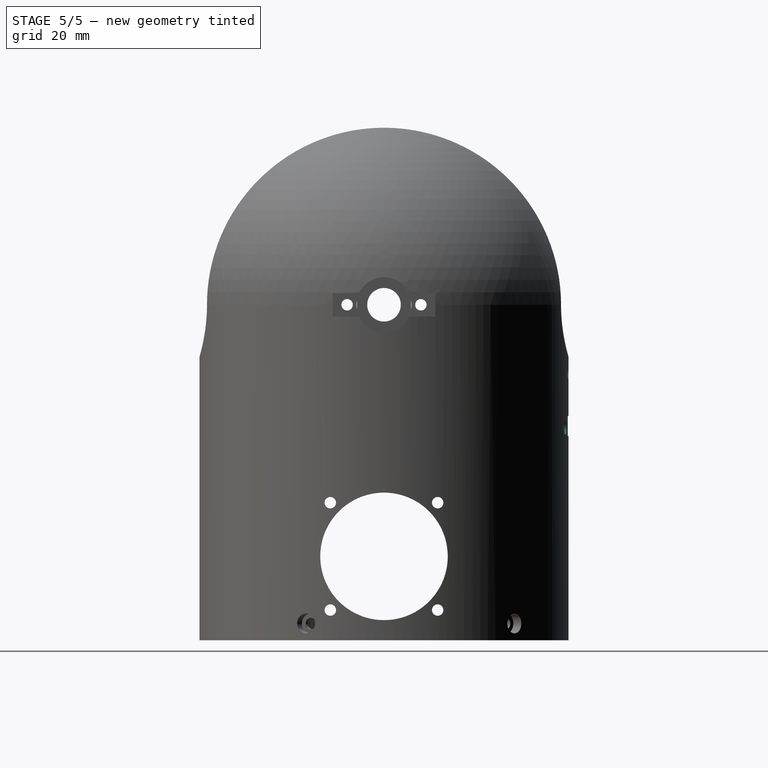
[diagram: stage 5 of 5 — right view after this stage's code; geometry added in this stage tinted green]
FEATURE [Sketcher::SketchObject] Sketch016
  ExternalGeometry = -> [Pocket012]
  FullyConstrained = true
  MapMode = 5
  Placement = pos=(0,51,-1e-16) rot=(1,0,0;1.5708rad)
  Support = -> [Pocket012]
  expr: Constraints[12] = Spreadsheet.M2BoltBodyRadius
  sketch-geometry (6):
    g0: LineSegment StartX=-5.075 StartY=66.875 StartZ=0 EndX=5.075 EndY=66.875 EndZ=0
    g1: LineSegment StartX=5.075 StartY=66.875 StartZ=0 EndX=5.075 EndY=60.875 EndZ=0
    g2: LineSegment StartX=5.075 StartY=60.875 StartZ=0 EndX=-5.075 EndY=60.875 EndZ=0
    g3: LineSegment StartX=-5.075 StartY=60.875 StartZ=0 EndX=-5.075 EndY=66.875 EndZ=0
    g4: Circle CenterX=-10.16 CenterY=63.375 CenterZ=0 NormalX=0 NormalY=0 NormalZ=1 AngleXU=0 Radius=1.2
    g5: Circle CenterX=10.16 CenterY=63.375 CenterZ=0 NormalX=0 NormalY=0 NormalZ=1 AngleXU=0 Radius=1.2
  constraints (16):
    c: Coincident(g0,g1)
    c: Coincident(g1,g2)
    c: Coincident(g2,g3)
    c: Coincident(g3,g0)
    c: Horizontal(g0)
    c: Vertical(g1)
    c: Vertical(g3)
    c: DistanceX(g2,g2) = 10.15
    c: DistanceY(g1,g1) = 6
    c: Symmetric(g2,g1,g-2)
    c: Symmetric(g5,g4,g-2)
    c: DistanceX(g4,g5) = 20.32
    c: Radius(g4) = 1.2
    c: Equal(g5,g4)
    c: DistanceY(g-4,g4) = 6
    c: DistanceY(g-4,g2) = 3.5
FEATURE [PartDesign::Pocket] Pocket013
  BaseFeature = -> Pocket012
  Length = 5
  Length2 = 100
  Placement = pos=(0,0,0) rot=(1,0,0;1.5708rad)
  Profile = -> Sketch016
  Refine = true
  Type = 1
FEATURE [Sketcher::SketchObject] Sketch017
  ExternalGeometry = -> [Pocket013]
  FullyConstrained = true
  MapMode = 5
  Placement = pos=(0,55.25,-8e-16) rot=(1,0,0;1.5708rad)
  Support = -> [DatumPlane002]
  expr: Constraints[2] = Spreadsheet.M2BoltHeadRadius
  sketch-geometry (2):
    g0: Circle CenterX=-10.16 CenterY=63.375 CenterZ=0 NormalX=0 NormalY=0 NormalZ=1 AngleXU=0 Radius=2.1
    g1: Circle CenterX=10.16 CenterY=63.375 CenterZ=0 NormalX=0 NormalY=0 NormalZ=1 AngleXU=0 Radius=2.1
  constraints (4):
    c: Coincident(g0,g-3)
    c: Equal(g1,g0)
    c: Radius(g0) = 2.1
    c: Coincident(g1,g-4)
FEATURE [PartDesign::Pocket] Pocket014
  BaseFeature = -> Pocket013
  Length = 3.25
  Length2 = 100
  Placement = pos=(0,0,0) rot=(1,0,0;1.5708rad)
  Profile = -> Sketch017
  Refine = true
  Reversed = true
  Type = 0
FEATURE [PartDesign::Plane] DatumPlane003
  AttachmentOffset = pos=(0,0,55) rot=(0,0,1;0rad)
  Length = 137.953
  MapMode = 5
  Placement = pos=(55,-1.22e-14,1.22e-14) rot=(0.57735,0.57735,0.57735;2.0944rad)
  ResizeMode = 0
  Support = -> [YZ_Plane]
  Width = 205.737
FEATURE [Sketcher::SketchObject] Sketch018
  FullyConstrained = true
  MapMode = 5
  Placement = pos=(55,-1.22e-14,1.22e-14) rot=(0.57735,0.57735,0.57735;2.0944rad)
  Support = -> [DatumPlane003]
  expr: Constraints[16] = Spreadsheet.M3BoltBodyRadius
  sketch-geometry (11):
    g0: Circle CenterX=0 CenterY=25 CenterZ=0 NormalX=0 NormalY=0 NormalZ=1 AngleXU=0 Radius=19
    g1: Circle CenterX=-16 CenterY=41 CenterZ=0 NormalX=0 NormalY=0 NormalZ=1 AngleXU=0 Radius=1.7
    g2: Circle CenterX=16 CenterY=41 CenterZ=0 NormalX=0 NormalY=0 NormalZ=1 AngleXU=0 Radius=1.7
    g3: Circle CenterX=16 CenterY=9 CenterZ=0 NormalX=0 NormalY=0 NormalZ=1 AngleXU=0 Radius=1.7
    g4: Circle CenterX=-16 CenterY=9 CenterZ=0 NormalX=0 NormalY=0 NormalZ=1 AngleXU=0 Radius=1.7
    g5: LineSegment StartX=-16 StartY=41 StartZ=0 EndX=16 EndY=41 EndZ=0
    g6: LineSegment StartX=16 StartY=41 StartZ=0 EndX=16 EndY=9 EndZ=0
    g7: LineSegment StartX=16 StartY=9 StartZ=0 EndX=-16 EndY=9 EndZ=0
    g8: LineSegment StartX=-16 StartY=9 StartZ=0 EndX=-16 EndY=41 EndZ=0
    g9: LineSegment StartX=16 StartY=41 StartZ=0 EndX=-16 EndY=9 EndZ=0
    g10: LineSegment StartX=-16 StartY=41 StartZ=0 EndX=16 EndY=9 EndZ=0
  constraints (26):
    c: PointOnObject(g0,g-2)
    c: Radius(g0) = 19
    c: Symmetric(g1,g2,g-2)
    c: Coincident(g5,g6)
    c: Coincident(g6,g7)
    c: Coincident(g7,g8)
    c: Coincident(g8,g5)
    c: Horizontal(g7)
    c: Vertical(g6)
    c: Vertical(g8)
    c: Coincident(g5,g1)
    c: Coincident(g6,g3)
    c: Coincident(g2,g5)
    c: Coincident(g4,g7)
    c: Equal(g8,g7)
    c: DistanceX(g5,g5) = 32
    c: Radius(g1) = 1.7
    c: Equal(g1,g2)
    c: Equal(g2,g3)
    c: Equal(g3,g4)
    c: Coincident(g9,g2)
    c: Coincident(g9,g4)
    c: PointOnObject(g0,g9)
    c: Coincident(g10,g1)
    c: Coincident(g10,g3)
    c: DistanceY(g-1,g0) = 25
FEATURE [PartDesign::Pocket] Pocket015
  BaseFeature = -> Pocket014
  Length = 11
  Length2 = 100
  Placement = pos=(0,0,0) rot=(1,0,0;1.5708rad)
  Profile = -> Sketch018
  Refine = true
  Type = 0
FEATURE [Sketcher::SketchObject] Sketch019
  FullyConstrained = true
  MapMode = 5
  Placement = pos=(0,0,0) rot=(0.57735,0.57735,0.57735;2.0944rad)
  Support = -> [YZ_Plane]
  expr: Constraints[89] = Spreadsheet.M3NutCircumradius
  sketch-geometry (32):
    g0: LineSegment StartX=16 StartY=41 StartZ=0 EndX=-16 EndY=41 EndZ=0
    g1: LineSegment StartX=-16 StartY=41 StartZ=0 EndX=-16 EndY=9 EndZ=0
    g2: LineSegment StartX=-16 StartY=9 StartZ=0 EndX=16 EndY=9 EndZ=0
    g3: LineSegment StartX=16 StartY=9 StartZ=0 EndX=16 EndY=41 EndZ=0
    g4: LineSegment StartX=13.0988 StartY=39.325 StartZ=0 EndX=16 EndY=37.65 EndZ=0
    g5: LineSegment StartX=16 StartY=37.65 StartZ=0 EndX=18.9012 EndY=39.325 EndZ=0
    g6: LineSegment StartX=18.9012 StartY=39.325 StartZ=0 EndX=18.9012 EndY=42.675 EndZ=0
    g7: LineSegment StartX=18.9012 StartY=42.675 StartZ=0 EndX=16 EndY=44.35 EndZ=0
    g8: LineSegment StartX=16 StartY=44.35 StartZ=0 EndX=13.0988 EndY=42.675 EndZ=0
    g9: LineSegment StartX=13.0988 StartY=42.675 StartZ=0 EndX=13.0988 EndY=39.325 EndZ=0
    g10: Circle CenterX=16 CenterY=41 CenterZ=0 NormalX=0 NormalY=0 NormalZ=1 AngleXU=0 Radius=3.35
    g11: LineSegment StartX=-13.0988 StartY=42.675 StartZ=0 EndX=-16 EndY=44.35 EndZ=0
    g12: LineSegment StartX=-16 StartY=44.35 StartZ=0 EndX=-18.9012 EndY=42.675 EndZ=0
    g13: LineSegment StartX=-18.9012 StartY=42.675 StartZ=0 EndX=-18.9012 EndY=39.325 EndZ=0
    g14: LineSegment StartX=-18.9012 StartY=39.325 StartZ=0 EndX=-16 EndY=37.65 EndZ=0
    g15: LineSegment StartX=-16 StartY=37.65 StartZ=0 EndX=-13.0988 EndY=39.325 EndZ=0
    g16: LineSegment StartX=-13.0988 StartY=39.325 StartZ=0 EndX=-13.0988 EndY=42.675 EndZ=0
    g17: Circle CenterX=-16 CenterY=41 CenterZ=0 NormalX=0 NormalY=0 NormalZ=1 AngleXU=0 Radius=3.35
    g18: LineSegment StartX=-13.0988 StartY=10.675 StartZ=0 EndX=-16 EndY=12.35 EndZ=0
    g19: LineSegment StartX=-16 StartY=12.35 StartZ=0 EndX=-18.9012 EndY=10.675 EndZ=0
    g20: LineSegment StartX=-18.9012 StartY=10.675 StartZ=0 EndX=-18.9012 EndY=7.325 EndZ=0
    g21: LineSegment StartX=-18.9012 StartY=7.325 StartZ=0 EndX=-16 EndY=5.65 EndZ=0
    g22: LineSegment StartX=-16 StartY=5.65 StartZ=0 EndX=-13.0988 EndY=7.325 EndZ=0
    g23: LineSegment StartX=-13.0988 StartY=7.325 StartZ=0 EndX=-13.0988 EndY=10.675 EndZ=0
    g24: Circle CenterX=-16 CenterY=9 CenterZ=0 NormalX=0 NormalY=0 NormalZ=1 AngleXU=0 Radius=3.35
    g25: LineSegment StartX=18.9012 StartY=10.675 StartZ=0 EndX=16 EndY=12.35 EndZ=0
    g26: LineSegment StartX=16 StartY=12.35 StartZ=0 EndX=13.0988 EndY=10.675 EndZ=0
    g27: LineSegment StartX=13.0988 StartY=10.675 StartZ=0 EndX=13.0988 EndY=7.325 EndZ=0
    g28: LineSegment StartX=13.0988 StartY=7.325 StartZ=0 EndX=16 EndY=5.65 EndZ=0
    g29: LineSegment StartX=16 StartY=5.65 StartZ=0 EndX=18.9012 EndY=7.325 EndZ=0
    g30: LineSegment StartX=18.9012 StartY=7.325 StartZ=0 EndX=18.9012 EndY=10.675 EndZ=0
    g31: Circle CenterX=16 CenterY=9 CenterZ=0 NormalX=0 NormalY=0 NormalZ=1 AngleXU=0 Radius=3.35
  constraints (75):
    c: Coincident(g0,g1)
    c: Coincident(g1,g2)
    c: Coincident(g2,g3)
    c: Coincident(g3,g0)
    c: Horizontal(g2)
    c: Vertical(g1)
    c: Vertical(g3)
    c: Equal(g2,g1)
    c: DistanceY(g1,g1) = 32
    c: Symmetric(g0,g0,g-2)
    c: Coincident(g4,g5)
    c: Coincident(g5,g6)
    c: Coincident(g6,g7)
    c: Coincident(g7,g8)
    c: Coincident(g8,g9)
    c: Coincident(g9,g4)
    c: Equal(g4, g5-g9) x5
    c: PointOnObject(g4,g10)
    c: PointOnObject(g5,g10)
    c: PointOnObject(g6,g10)
    c: PointOnObject(g7,g10)
    c: PointOnObject(g8,g10)
    c: PointOnObject(g9,g10)
    c: Coincident(g10,g0)
    c: Coincident(g11,g12)
    c: Coincident(g12,g13)
    c: Coincident(g13,g14)
    c: Coincident(g14,g15)
    c: Coincident(g15,g16)
    c: Coincident(g16,g11)
    c: Equal(g11, g12-g16) x5
    c: PointOnObject(g11,g17)
    c: PointOnObject(g12,g17)
    c: PointOnObject(g13,g17)
    c: PointOnObject(g14,g17)
    c: PointOnObject(g15,g17)
    c: PointOnObject(g16,g17)
    c: Coincident(g17,g0)
    c: Coincident(g18,g19)
    c: Coincident(g19,g20)
    c: Coincident(g20,g21)
    c: Coincident(g21,g22)
    c: Coincident(g22,g23)
    c: Coincident(g23,g18)
    c: Equal(g18, g19-g23) x5
    c: PointOnObject(g18,g24)
    c: PointOnObject(g19,g24)
    c: PointOnObject(g20,g24)
    c: PointOnObject(g21,g24)
    c: PointOnObject(g22,g24)
    c: PointOnObject(g23,g24)
    c: Coincident(g24,g1)
    c: Coincident(g25,g26)
    c: Coincident(g26,g27)
    c: Coincident(g27,g28)
    c: Coincident(g28,g29)
    c: Coincident(g29,g30)
    c: Coincident(g30,g25)
    c: Equal(g25, g26-g30) x5
    c: PointOnObject(g25,g31)
    c: PointOnObject(g26,g31)
    c: PointOnObject(g27,g31)
    c: PointOnObject(g28,g31)
    c: PointOnObject(g29,g31)
    c: PointOnObject(g30,g31)
    c: Coincident(g31,g2)
    c: Vertical(g30)
    c: Vertical(g23)
    c: Vertical(g16)
    c: Vertical(g9)
    c: Equal(g10,g31)
    c: Equal(g31,g24)
    c: Equal(g24,g17)
    c: Radius(g10) = 3.35
    c: DistanceY(g-1,g1) = 9
FEATURE [PartDesign::Pocket] Pocket016
  BaseFeature = -> Pocket015
  Length = 51
  Length2 = 100
  Placement = pos=(0,0,0) rot=(1,0,0;1.5708rad)
  Profile = -> Sketch019
  Refine = true
  Reversed = true
  Type = 0
FEATURE [PartDesign::Mirrored] Mirrored001
  BaseFeature = -> Pocket016
  MirrorPlane = -> YZ_Plane
  Originals = -> [Pocket015,Pocket016]
  Placement = pos=(0,0,0) rot=(1,0,0;1.5708rad)
  Refine = true
FEATURE [PartDesign::CoordinateSystem] LCS_Art4Body
  AttacherType = Attacher::AttachEngine3D
  MapMode = 11
  Placement = pos=(0,0,0) rot=(0.707107,-0.707107,0;3.14159rad)
  Support = -> [Mirrored001]
FEATURE [PartDesign::CoordinateSystem] LCS_Fan1
  AttacherType = Attacher::AttachEngine3D
  MapMode = 45
  Placement = pos=(-51,1.26e-14,25) rot=(0.57735,0.57735,0.57735;2.0944rad)
  Support = -> [Mirrored001]
FEATURE [PartDesign::CoordinateSystem] LCS_Fan2
  AttacherType = Attacher::AttachEngine3D
  MapMode = 45
  Placement = pos=(51,6e-15,25) rot=(0.57735,0.57735,0.57735;2.0944rad)
  Support = -> [Mirrored001]
FEATURE [PartDesign::CoordinateSystem] LCS_Bearing1
  AttacherType = Attacher::AttachEngine3D
  MapMode = 11
  Placement = pos=(-46,4.44e-14,100) rot=(0.57735,-0.57735,0.57735;4.18879rad)
  Support = -> [Mirrored001]
FEATURE [PartDesign::CoordinateSystem] LCS_BearingFix1
  AttacherType = Attacher::AttachEngine3D
  MapMode = 45
  Placement = pos=(-51,2.26e-14,100) rot=(0.707107,0,0.707107;3.14159rad)
  Support = -> [Mirrored001]
FEATURE [PartDesign::CoordinateSystem] LCS_Bearing2
  AttacherType = Attacher::AttachEngine3D
  MapMode = 11
  Placement = pos=(46,6.66e-14,100) rot=(-0.57735,-0.57735,0.57735;2.0944rad)
  Support = -> [Mirrored001]
FEATURE [PartDesign::CoordinateSystem] LCS_BearingFix2
  AttacherType = Attacher::AttachEngine3D
  MapMode = 45
  Placement = pos=(51,2.26e-14,100) rot=(0.707107,0,0.707107;3.14159rad)
  Support = -> [Mirrored001]
FEATURE [PartDesign::CoordinateSystem] LCS_MicroSwitch
  AttacherType = Attacher::AttachEngine3D
  MapMode = 45
  Placement = pos=(6.1e-15,52.25,79.9) rot=(0.57735,0.57735,0.57735;4.18879rad)
  Support = -> [Mirrored001]
FEATURE [PartDesign::CoordinateSystem] LCS_Connector
  AttacherType = Attacher::AttachEngine3D
  MapMode = 45
  Placement = pos=(5.7e-15,51,63.375) rot=(0.57735,0.57735,0.57735;4.18879rad)
  Support = -> [Mirrored001]
FEATURE [PartDesign::Line] HoleAxis_1
  AttacherType = Attacher::AttachEngineLine
  Length = 4.79083
  MapMode = 19
  Placement = pos=(-51,16,9) rot=(-0.57735,-0.57735,0.57735;2.0944rad)
  ResizeMode = 1
  Support = -> [Mirrored001]
FEATURE [PartDesign::Line] HoleAxis_2
  AttacherType = Attacher::AttachEngineLine
  Length = 4.79083
  MapMode = 19
  Placement = pos=(-51,-16,9) rot=(-0.57735,-0.57735,0.57735;2.0944rad)
  ResizeMode = 1
  Support = -> [Mirrored001]
FEATURE [PartDesign::Line] HoleAxis_3
  AttacherType = Attacher::AttachEngineLine
  Length = 4.79083
  MapMode = 19
  Placement = pos=(-51,16,41) rot=(-0.57735,-0.57735,0.57735;2.0944rad)
  ResizeMode = 1
  Support = -> [Mirrored001]
FEATURE [PartDesign::Line] HoleAxis_4
  AttacherType = Attacher::AttachEngineLine
  Length = 4.79083
  MapMode = 19
  Placement = pos=(-51,-16,41) rot=(-0.57735,-0.57735,0.57735;2.0944rad)
  ResizeMode = 1
  Support = -> [Mirrored001]
FEATURE [PartDesign::Line] HoleAxis_5
  AttacherType = Attacher::AttachEngineLine
  Length = 4.79083
  MapMode = 19
  Placement = pos=(51,16,9) rot=(0.57735,0.57735,0.57735;2.0944rad)
  ResizeMode = 1
  Support = -> [Mirrored001]
FEATURE [PartDesign::Line] HoleAxis_6
  AttacherType = Attacher::AttachEngineLine
  Length = 4.79083
  MapMode = 19
  Placement = pos=(51,16,41) rot=(0.57735,0.57735,0.57735;2.0944rad)
  ResizeMode = 1
  Support = -> [Mirrored001]
FEATURE [PartDesign::Line] HoleAxis_7
  AttacherType = Attacher::AttachEngineLine
  Length = 4.79083
  MapMode = 19
  Placement = pos=(51,-16,9) rot=(0.57735,0.57735,0.57735;2.0944rad)
  ResizeMode = 1
  Support = -> [Mirrored001]
FEATURE [PartDesign::Line] HoleAxis_8
  AttacherType = Attacher::AttachEngineLine
  Length = 4.79083
  MapMode = 19
  Placement = pos=(51,-16,41) rot=(0.57735,0.57735,0.57735;2.0944rad)
  ResizeMode = 1
  Support = -> [Mirrored001]
FEATURE [PartDesign::Line] HoleAxis_9
  AttacherType = Attacher::AttachEngineLine
  Length = 4.79083
  MapMode = 19
  Placement = pos=(-46.737,21.7938,5) rot=(-0.410726,0.644711,0.644711;3.92103rad)
  ResizeMode = 1
  Support = -> [Mirrored001]
FEATURE [PartDesign::Line] HoleAxis_10
  AttacherType = Attacher::AttachEngineLine
  Length = 4.79083
  MapMode = 19
  Placement = pos=(-36.4645,-36.4645,5) rot=(0.862856,-0.357407,-0.357407;1.71777rad)
  ResizeMode = 1
  Support = -> [Mirrored001]
FEATURE [PartDesign::Line] HoleAxis_11
  AttacherType = Attacher::AttachEngineLine
  Length = 4.79083
  MapMode = 19
  Placement = pos=(36.4645,36.4645,5) rot=(0.281085,0.678598,0.678598;2.59356rad)
  ResizeMode = 1
  Support = -> [Mirrored001]
FEATURE [PartDesign::Line] HoleAxis_12
  AttacherType = Attacher::AttachEngineLine
  Length = 4.79083
  MapMode = 19
  Placement = pos=(46.737,-21.7938,5) rot=(0.742942,0.473306,0.473306;1.86366rad)
  ResizeMode = 1
  Support = -> [Mirrored001]
FEATURE [PartDesign::Line] HoleAxis_13
  AttacherType = Attacher::AttachEngineLine
  Length = 3.38176
  MapMode = 19
  Placement = pos=(-10.16,52,63.375) rot=(1,0,0;1.5708rad)
  ResizeMode = 1
  Support = -> [Mirrored001]
FEATURE [PartDesign::Line] HoleAxis_14
  AttacherType = Attacher::AttachEngineLine
  Length = 3.38176
  MapMode = 19
  Placement = pos=(10.16,52,63.375) rot=(1,0,0;1.5708rad)
  ResizeMode = 1
  Support = -> [Mirrored001]
FEATURE [PartDesign::Line] HoleAxis_15
  AttacherType = Attacher::AttachEngineLine
  Length = 3.38176
  MapMode = 19
  Placement = pos=(-3.25,53.75,79.9) rot=(1,0,0;1.5708rad)
  ResizeMode = 1
  Support = -> [Mirrored001]
FEATURE [PartDesign::Line] HoleAxis_16
  AttacherType = Attacher::AttachEngineLine
  Length = 3.38176
  MapMode = 19
  Placement = pos=(3.25,53.75,79.9) rot=(1,0,0;1.5708rad)
  ResizeMode = 1
  Support = -> [Mirrored001]
FEATURE [PartDesign::Line] HoleAxis_17
  AttacherType = Attacher::AttachEngineLine
  Length = 4.79083
  MapMode = 19
  Placement = pos=(-48,11,100) rot=(0,-1,0;1.5708rad)
  ResizeMode = 1
  Support = -> [Mirrored001]
FEATURE [PartDesign::Line] HoleAxis_18
  AttacherType = Attacher::AttachEngineLine
  Length = 4.79083
  MapMode = 19
  Placement = pos=(-48,-11,100) rot=(0,-1,0;1.5708rad)
  ResizeMode = 1
  Support = -> [Mirrored001]
FEATURE [PartDesign::Line] HoleAxis_19
  AttacherType = Attacher::AttachEngineLine
  Length = 4.79083
  MapMode = 19
  Placement = pos=(48,11,100) rot=(0.707107,0,0.707107;3.14159rad)
  ResizeMode = 1
  Support = -> [Mirrored001]
FEATURE [PartDesign::Line] HoleAxis_20
  AttacherType = Attacher::AttachEngineLine
  Length = 4.79083
  MapMode = 19
  Placement = pos=(48,-11,100) rot=(0.707107,0,0.707107;3.14159rad)
  ResizeMode = 1
  Support = -> [Mirrored001]
FEATURE [PartDesign::Body] Body  label="Art4Body"
  Group = -> [Sketch,Revolution,Sketch001,Pocket,Sketch002,DatumLine,Revolution001,Sketch003,Pocket001,DatumPlane,Sketch004,Pocket002,Sketch005,Pocket003,Sketch006,Pocket004,Sketch007,Pocket005,Mirrored,Sketch008,Pad,Sketch009,Pocket006,PolarPattern,DatumPlane001,Sketch010,Pocket007,Sketch011,Pocket008,MultiTransform,PolarPattern001,PolarPattern002,Sketch012,Pocket009,Sketch013,Pocket010,DatumPlane002,+43 more]
  Origin = -> Origin
  Tip = -> Mirrored001
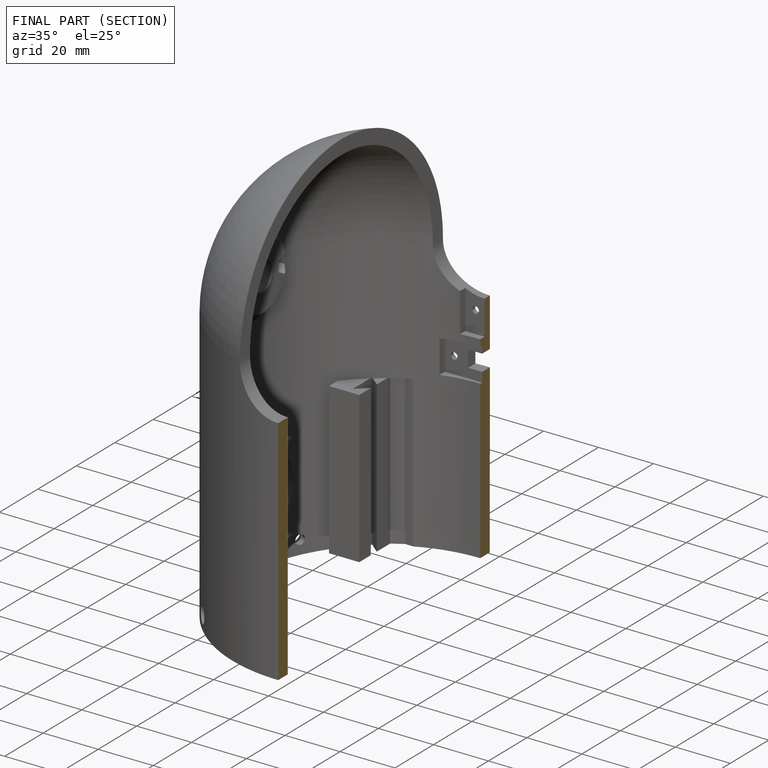
[diagram: finished part — half-section view (interior)]
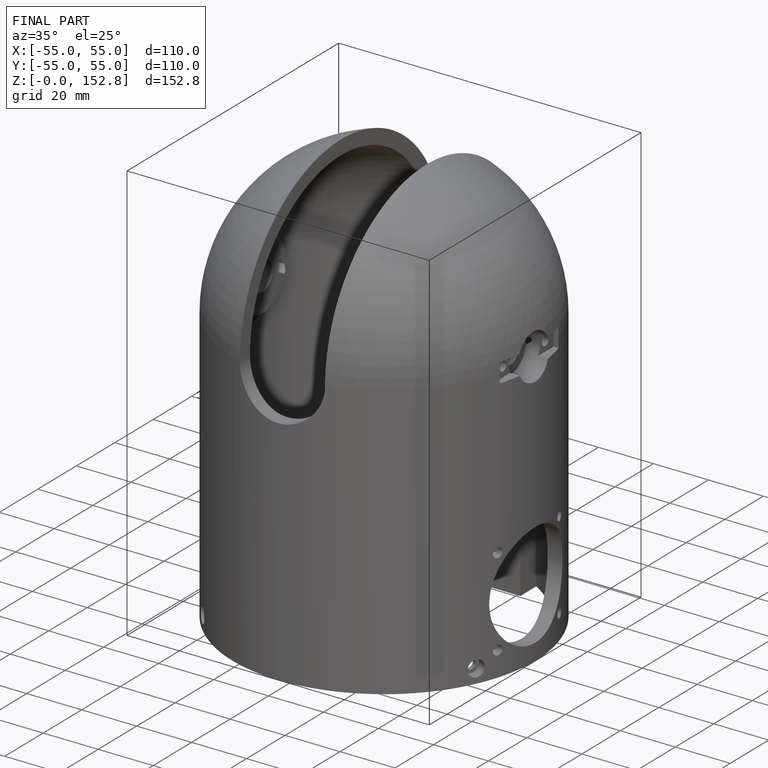
[diagram: finished part — iso view with bounding-box wireframe]
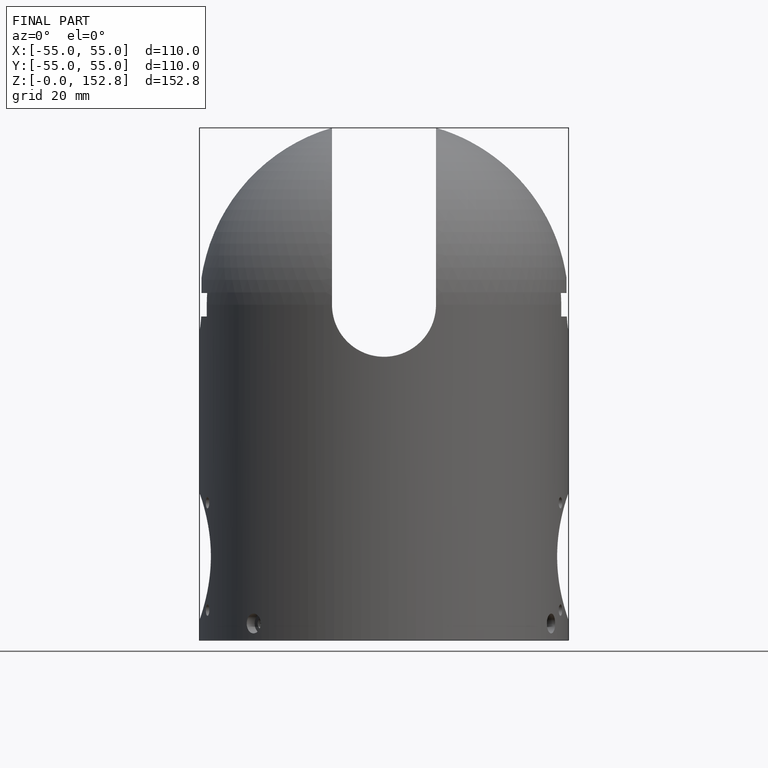
[diagram: finished part — front view with bounding-box wireframe]
